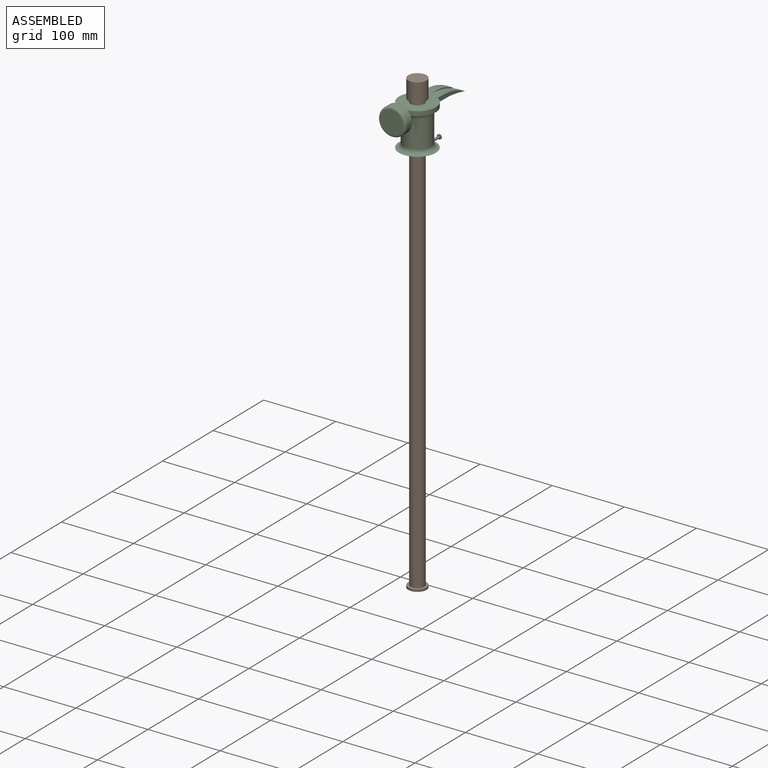
[diagram: assembled view]
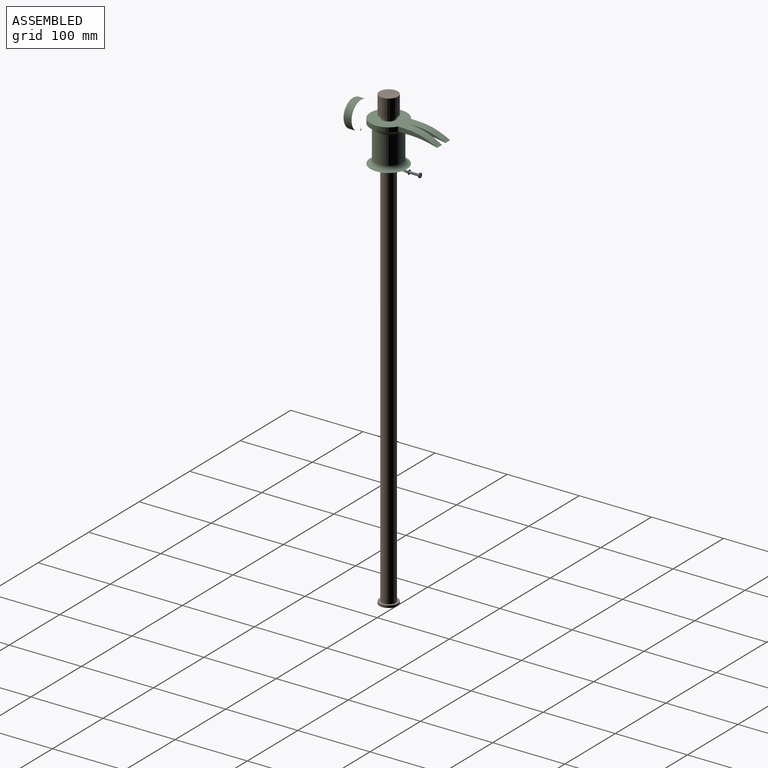
[diagram: assembled view, second angle]
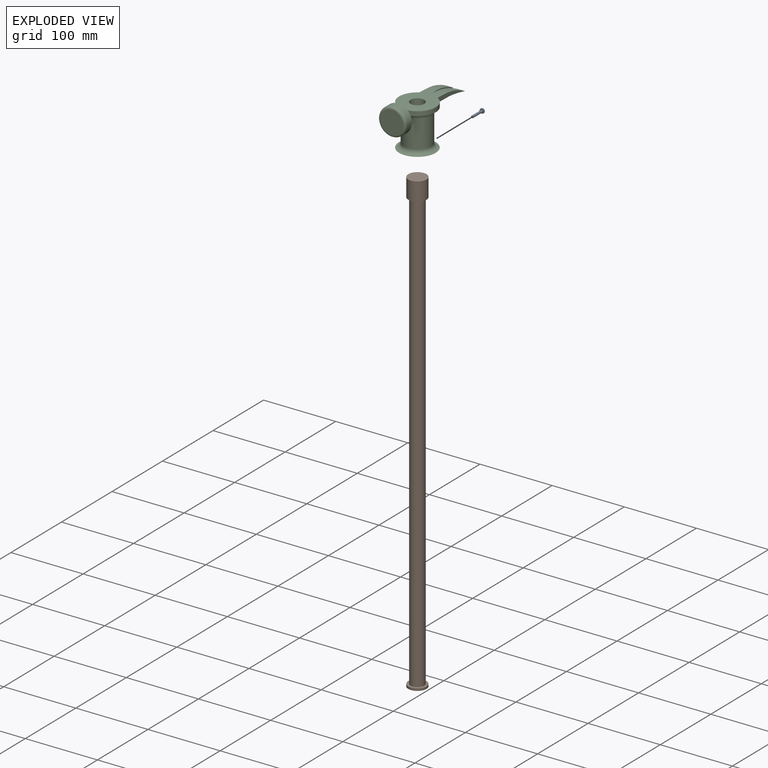
[diagram: exploded view]
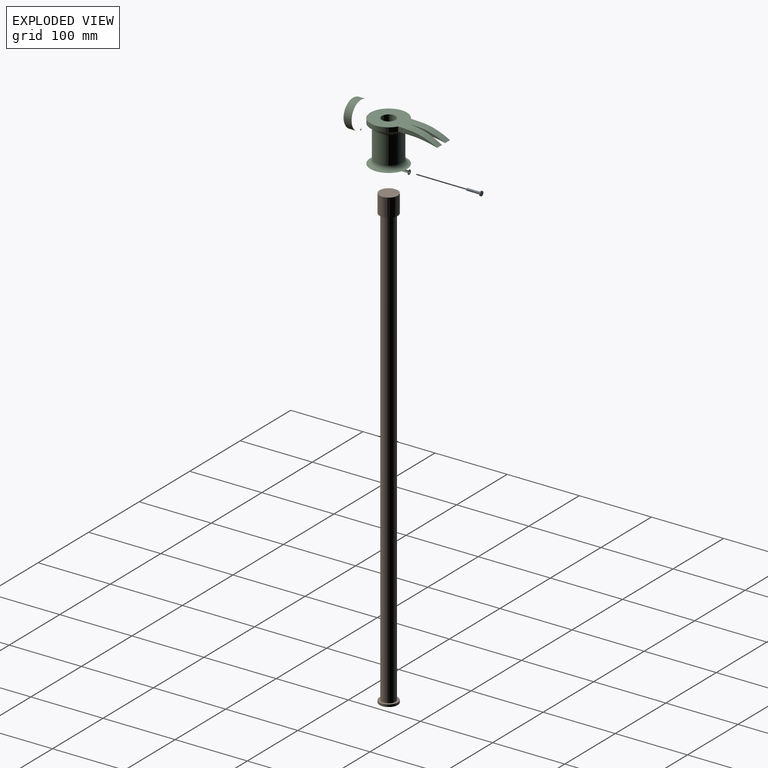
[diagram: exploded view, second angle]
ASSEMBLY  parts=3 mates=2
PART A: 9 faces, bbox 6.4x20.6x6.4 mm
  f0: cylinder r=3.17mm len=6.35mm, axis (0,-1,0), area 31mm2, adj f1,f2,f3,f6,f7,f8
  f1: plane 6.22x2.54mm, normal (0,1,0), area 11.8mm2, adj f0,f6
  f2: plane 6.22x2.54mm, normal (0,1,0), area 11.8mm2, adj f0,f8
  f3: plane 6.35x6.35mm, normal (0,-1,0), area 23.8mm2, adj f0,f4
  f4: cylinder r=1.59mm len=19.05mm, axis (0,1,0), area 190mm2, adj f3,f5
  f5: plane 3.18x3.18mm, normal (0,-1,0), area 7.9mm2, adj f4
  f6: plane 6.22x0.25mm, normal (0,0,-1), area 1.6mm2, adj f0,f1,f7
  f7: plane 6.35x1.27mm, normal (0,1,0), area 8mm2, adj f0,f6,f8
  f8: plane 6.22x0.25mm, normal (0,0,1), area 1.6mm2, adj f0,f2,f7
PART B: 7 faces, bbox 25.4x25.4x638.2 mm
  f0: cylinder r=9.53mm len=609.6mm, axis (0,0,-1), area 36482.9mm2, adj f3,f6
  f1: cylinder r=12.7mm len=25.4mm, axis (0,0,1), area 253.4mm2, adj f2,f3
  f2: plane 25.4x25.4mm, normal (0,0,-1), area 506.7mm2, adj f1
  f3: plane 25.4x25.4mm, normal (0,0,1), area 221.7mm2, adj f0,f1
  f4: cylinder r=12.7mm len=25.4mm, axis (0,0,-1), area 2026.8mm2, adj f5,f6
  f5: plane 25.4x25.4mm, normal (0,0,1), area 506.7mm2, adj f4
  f6: plane 25.4x25.4mm, normal (0,0,-1), area 221.7mm2, adj f0,f4
PART C: 28 faces, bbox 65.9x128.1x88.7 mm
  f0: extruded ~50.8x25.4mm, area 1184.4mm2, adj f1,f8,f10,f11,f26,f27
  f1: extruded ~50.8x25.4mm, area 1150.4mm2, adj f0,f10,f11,f12,f13,f26,f27
  f2: cylinder r=25.4mm len=47.4mm, axis (0,0,-1), area 396.7mm2, adj f4,f8,f10,f14,f19
  f3: cylinder r=25.4mm len=47.4mm, axis (0,0,-1), area 396.7mm2, adj f4,f8,f11,f14,f21
  f4: torus R=25.4mm, axis (0,0,1), area 1160.3mm2, adj f2,f3,f7,f12,f13,f19,f21
  f5: cylinder r=25.4mm len=50.8mm, axis (0,0,-1), area 0mm2, adj f6,f9,f22
  f6: plane 50.8x50.8mm, normal (0,0,-1), area 1741.8mm2, adj f5,f25
  f7: cylinder r=19.05mm len=38.1mm, axis (0,0,-1), area 4560.4mm2, adj f4,f9,f20
  f8: plane 50.8x50.8mm, normal (0,0,1), area 1769.8mm2, adj f0,f2,f3,f10,f11,f25
  f9: torus R=25.4mm, axis (0,0,1), area 1338.5mm2, adj f5,f7
  f10: plane 54.2x12.29mm, normal (1,0,0), area 239mm2, adj f0,f1,f2,f8,f13
  f11: plane 54.2x12.29mm, normal (-1,0,0), area 239mm2, adj f0,f1,f3,f8,f12
  f12: plane 12.7x3.4mm, normal (0,0,-1), area 14mm2, adj f1,f4,f11
  f13: plane 12.7x3.4mm, normal (0,0,-1), area 14mm2, adj f1,f4,f10
  f14: cylinder r=6.35mm len=12.7mm, axis (0,1,0), area 36.5mm2, adj f2,f3,f17,f19,f20,f21
  f15: cylinder r=19.05mm len=38.1mm, axis (0,1,0), area 1140.1mm2, adj f17,f18
  f16: plane 31.75x31.75mm, normal (0,-1,0), area 791.7mm2, adj f18
  f17: torus R=19.05mm, axis (0,-1,0), area 1374.4mm2, adj f14,f15
  f18: torus R=15.88mm, axis (0,-1,0), area 560.8mm2, adj f15,f16
  f19: bspline ~13.25x7.26mm, area 36mm2, adj f2,f4,f14,f20
  f20: bspline ~16.79x9.1mm, area 106.8mm2, adj f7,f14,f19,f21
  f21: bspline ~13.25x7.26mm, area 36mm2, adj f3,f4,f14,f20
  f22: cylinder r=3.17mm len=6.35mm, axis (0,-1,0), area 0mm2, adj f5,f23
  f23: plane 6.35x6.35mm, normal (0,1,0), area 23.8mm2, adj f22,f24
  f24: cylinder r=1.59mm len=19.05mm, axis (0,1,0), area 190mm2, adj f23,f25
  f25: cylinder r=9.53mm len=63.5mm, axis (0,0,1), area 3792.3mm2, adj f6,f8,f24
  f26: plane 48.75x13.29mm, normal (1,0.07,0), area 197.8mm2, adj f0,f1,f27
  f27: plane 48.55x13.09mm, normal (-1,0.07,0), area 197.8mm2, adj f0,f1,f26
PLACE A t=(-203.84,95.94,485.12)mm
PLACE B t=(-203.84,53.28,-59.46)mm fixed
PLACE C t=(-203.84,53.28,481.94)mm
MATE slider C.f25 <-> B.f0  axis (0,0,1) through (-203.84,53.28,545.44)mm
MATE slider A.f4 <-> C.f22  axis (0,-1,0) through (-203.84,76.89,485.12)mm
